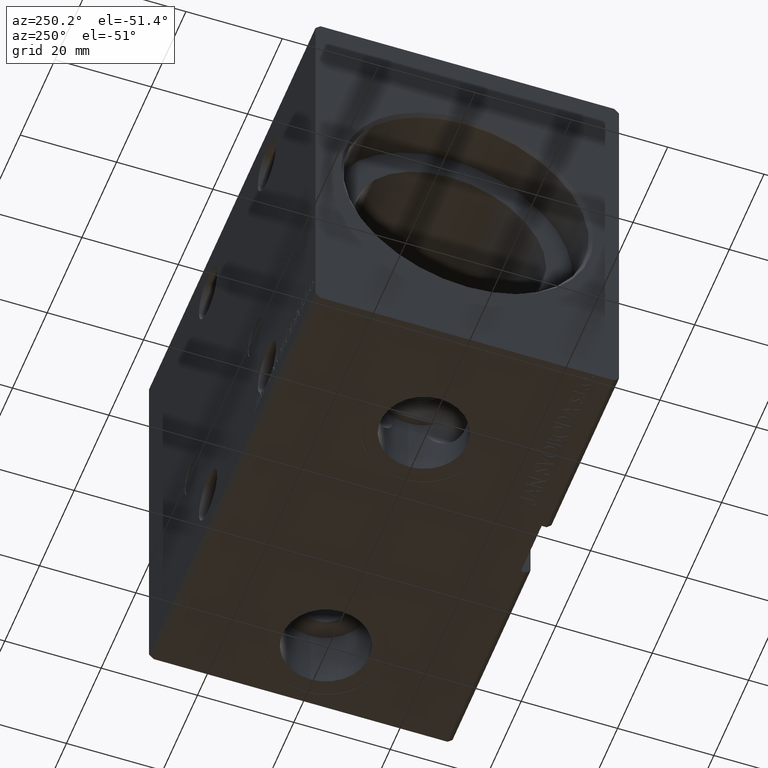
[diagram: clean part render]
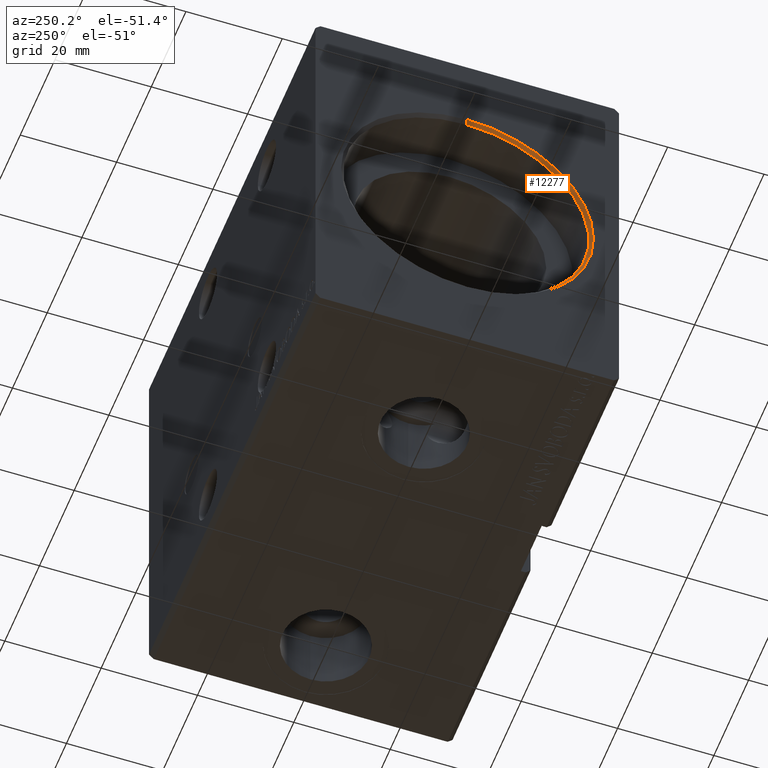
[diagram: same view with one face highlighted and labeled with its STEP entity id]
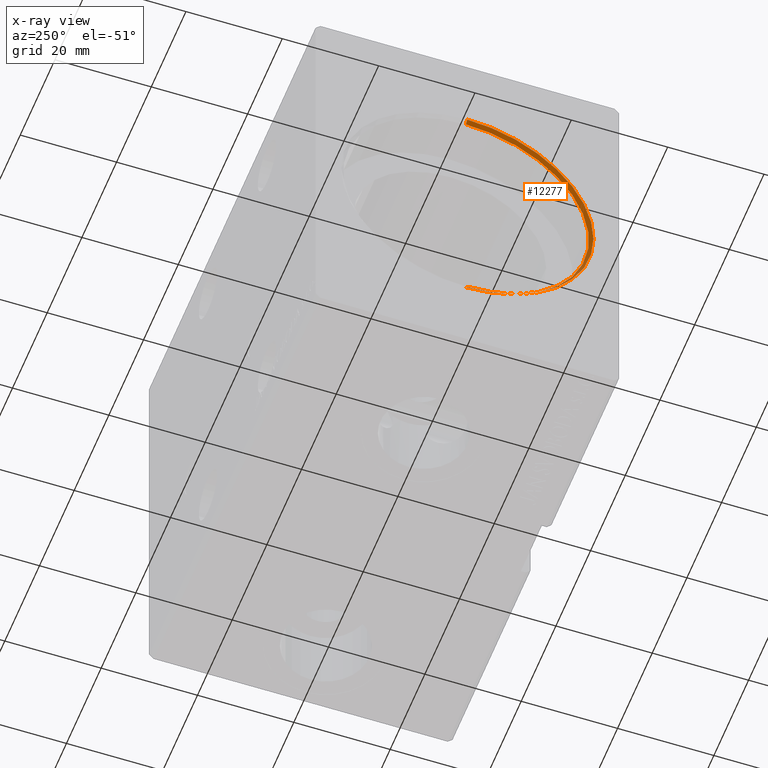
[diagram: x-ray of the same camera — body ghosted, the highlighted face saturated]
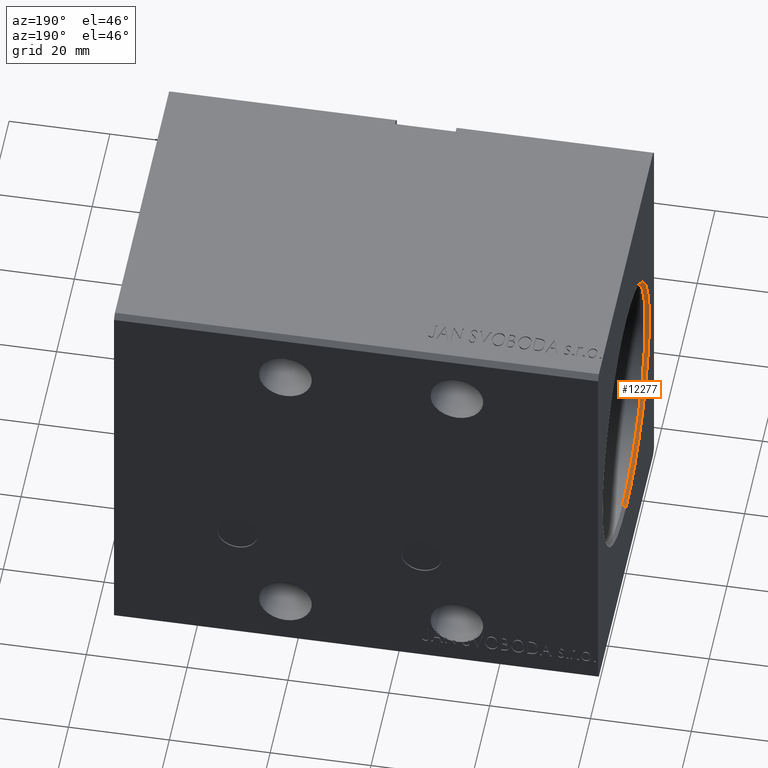
[diagram: same view with one face highlighted and labeled with its STEP entity id]
A machine part, auxiliary view. The second image highlights one B-rep face of the part: STEP entity #12277.
The next image is the same camera in x-ray: the body ghosted, the highlighted face saturated — about 0% of this face is hidden behind the body in this view.
A second angle (auxiliary view) of the same face is appended — the face is thin or edge-on in the first view.
In plain terms, the highlighted conical surface has half-angle 45 deg.
Its self-contained STEP definition (entity closure, byte-faithful):
#864 = DIRECTION ( 'NONE',  ( 1.000000000000000000, 0.000000000000000000, 0.000000000000000000 ) ) ;
#894 = CARTESIAN_POINT ( 'NONE',  ( 0.6999999999999784173, 0.000000000000000000, 0.000000000000000000 ) ) ;
#1086 = FACE_OUTER_BOUND ( 'NONE', #28260, .T. ) ;
#1432 = CIRCLE ( 'NONE', #9987, 25.50000000000000000 ) ;
#2014 = DIRECTION ( 'NONE',  ( -0.7071067811865422437, 8.659560562354996953E-17, -0.7071067811865527908 ) ) ;
#7048 = VERTEX_POINT ( 'NONE', #24925 ) ;
#7130 = DIRECTION ( 'NONE',  ( -1.000000000000000000, 0.000000000000000000, 0.000000000000000000 ) ) ;
#8711 = CARTESIAN_POINT ( 'NONE',  ( 0.6999999999999784173, 0.000000000000000000, 25.50000000000000000 ) ) ;
#8724 = VECTOR ( 'NONE', #2014, 1000.000000000000000 ) ;
#9987 = AXIS2_PLACEMENT_3D ( 'NONE', #19966, #7130, #32602 ) ;
#10190 = DIRECTION ( 'NONE',  ( 0.000000000000000000, 0.000000000000000000, 1.000000000000000000 ) ) ;
#10977 = DIRECTION ( 'NONE',  ( 0.000000000000000000, 0.000000000000000000, -1.000000000000000000 ) ) ;
#11617 = VERTEX_POINT ( 'NONE', #29396 ) ;
#12277 = ADVANCED_FACE ( 'NONE', ( #1086 ), #40854, .F. ) ;
#13385 = ORIENTED_EDGE ( 'NONE', *, *, #19983, .F. ) ;
#14245 = CARTESIAN_POINT ( 'NONE',  ( 0.000000000000000000, 0.000000000000000000, 26.19999999999998863 ) ) ;
#14436 = AXIS2_PLACEMENT_3D ( 'NONE', #29228, #864, #10977 ) ;
#17085 = CIRCLE ( 'NONE', #14436, 26.19999999999998863 ) ;
#17832 = LINE ( 'NONE', #8711, #25159 ) ;
#19966 = CARTESIAN_POINT ( 'NONE',  ( 0.6999999999999784173, 0.000000000000000000, 0.000000000000000000 ) ) ;
#19983 = EDGE_CURVE ( 'NONE', #40826, #7048, #17085, .T. ) ;
#22888 = AXIS2_PLACEMENT_3D ( 'NONE', #894, #23035, #10190 ) ;
#23035 = DIRECTION ( 'NONE',  ( -1.000000000000000000, 0.000000000000000000, 0.000000000000000000 ) ) ;
#23256 = CARTESIAN_POINT ( 'NONE',  ( 0.6999999999999784173, 0.000000000000000000, 25.50000000000000000 ) ) ;
#24925 = CARTESIAN_POINT ( 'NONE',  ( 0.000000000000000000, 3.208574613766063722E-15, -26.19999999999998863 ) ) ;
#25159 = VECTOR ( 'NONE', #30054, 1000.000000000000000 ) ;
#26911 = EDGE_CURVE ( 'NONE', #40401, #40826, #17832, .T. ) ;
#28260 = EDGE_LOOP ( 'NONE', ( #31112, #34650, #13385, #33752 ) ) ;
#29228 = CARTESIAN_POINT ( 'NONE',  ( 0.000000000000000000, 0.000000000000000000, 0.000000000000000000 ) ) ;
#29396 = CARTESIAN_POINT ( 'NONE',  ( 0.6999999999999784173, 3.122849337825750222E-15, -25.50000000000000000 ) ) ;
#30054 = DIRECTION ( 'NONE',  ( -0.7071067811865422437, 0.000000000000000000, 0.7071067811865527908 ) ) ;
#31112 = ORIENTED_EDGE ( 'NONE', *, *, #33387, .F. ) ;
#32602 = DIRECTION ( 'NONE',  ( 0.000000000000000000, 0.000000000000000000, -1.000000000000000000 ) ) ;
#33070 = LINE ( 'NONE', #36601, #8724 ) ;
#33387 = EDGE_CURVE ( 'NONE', #11617, #40401, #1432, .T. ) ;
#33752 = ORIENTED_EDGE ( 'NONE', *, *, #26911, .F. ) ;
#34650 = ORIENTED_EDGE ( 'NONE', *, *, #35669, .T. ) ;
#35669 = EDGE_CURVE ( 'NONE', #11617, #7048, #33070, .T. ) ;
#36601 = CARTESIAN_POINT ( 'NONE',  ( 0.6999999999999784173, 3.122849337825750222E-15, -25.50000000000000000 ) ) ;
#40401 = VERTEX_POINT ( 'NONE', #23256 ) ;
#40826 = VERTEX_POINT ( 'NONE', #14245 ) ;
#40854 = CONICAL_SURFACE ( 'NONE', #22888, 25.50000000000000000, 0.7853981633974557175 ) ;